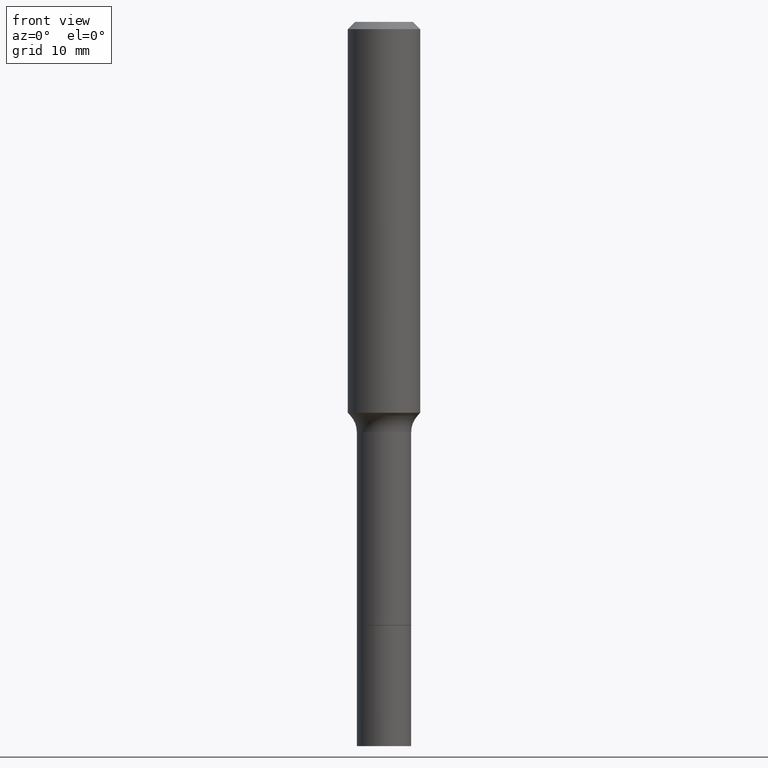
[diagram: clean part render]
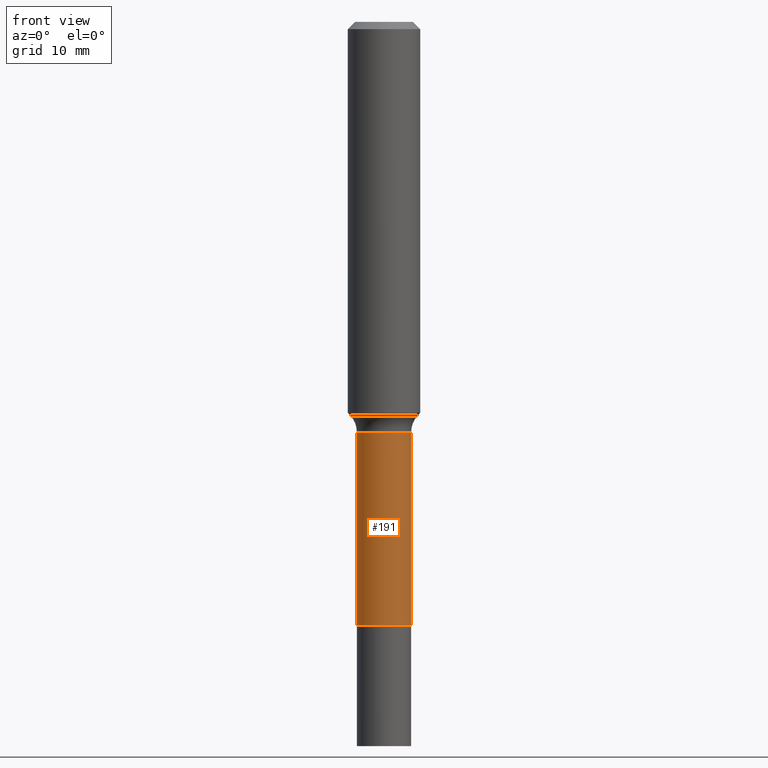
[diagram: same view with one face highlighted and labeled with its STEP entity id]
A machine part, front view. The second image highlights one B-rep face of the part: STEP entity #191.
In plain terms, the highlighted cylindrical surface (edge-blend (fillet) strip) has radius 2.2504 mm, axis along (-0, 0, 1).
Its self-contained STEP definition (entity closure, byte-faithful):
#15 = CARTESIAN_POINT ( 'NONE',  ( 0.08859999999999994269, -6.186904932430028543E-16, 4.320292623355196663E-30 ) ) ;
#22 = DIRECTION ( 'NONE',  ( -2.445468806185136877E-29, 3.491481338843145188E-15, 1.000000000000000000 ) ) ;
#24 = ORIENTED_EDGE ( 'NONE', *, *, #35, .F. ) ;
#35 = EDGE_CURVE ( 'NONE', #245, #253, #180, .T. ) ;
#37 = AXIS2_PLACEMENT_3D ( 'NONE', #356, #160, #318 ) ;
#57 = DIRECTION ( 'NONE',  ( -2.445468806185136597E-29, 3.491481338843145583E-15, 1.000000000000000000 ) ) ;
#73 = DIRECTION ( 'NONE',  ( 1.000000000000000000, -6.982962677686266711E-15, 4.876176775795936353E-29 ) ) ;
#93 = ORIENTED_EDGE ( 'NONE', *, *, #509, .T. ) ;
#104 = VECTOR ( 'NONE', #22, 39.37007874015748143 ) ;
#138 = VECTOR ( 'NONE', #271, 39.37007874015748143 ) ;
#148 = CARTESIAN_POINT ( 'NONE',  ( -0.08859999999999991493, -5.141703215157328173E-15, -1.338200000000000056 ) ) ;
#160 = DIRECTION ( 'NONE',  ( -2.445468806185136597E-29, 3.491481338843145583E-15, 1.000000000000000000 ) ) ;
#166 = VERTEX_POINT ( 'NONE', #434 ) ;
#180 = LINE ( 'NONE', #337, #104 ) ;
#191 = ADVANCED_FACE ( 'NONE', ( #390 ), #393, .T. ) ;
#207 = LINE ( 'NONE', #15, #138 ) ;
#218 = CIRCLE ( 'NONE', #37, 0.08859999999999991493 ) ;
#224 = CARTESIAN_POINT ( 'NONE',  ( 0.000000000000000000, 0.000000000000000000, 0.000000000000000000 ) ) ;
#244 = CIRCLE ( 'NONE', #450, 0.08859999999999999820 ) ;
#245 = VERTEX_POINT ( 'NONE', #431 ) ;
#251 = DIRECTION ( 'NONE',  ( 1.000000000000000000, -6.982962677686269077E-15, 0.000000000000000000 ) ) ;
#253 = VERTEX_POINT ( 'NONE', #148 ) ;
#255 = CARTESIAN_POINT ( 'NONE',  ( 4.811948969930493801E-29, -6.870187830441658090E-15, -1.967700000000000227 ) ) ;
#256 = ORIENTED_EDGE ( 'NONE', *, *, #380, .F. ) ;
#271 = DIRECTION ( 'NONE',  ( -2.445468806185136877E-29, 3.491481338843145188E-15, 1.000000000000000000 ) ) ;
#291 = EDGE_LOOP ( 'NONE', ( #24, #93, #492, #256 ) ) ;
#318 = DIRECTION ( 'NONE',  ( 1.000000000000000000, -6.982962677686264344E-15, 0.000000000000000000 ) ) ;
#337 = CARTESIAN_POINT ( 'NONE',  ( -0.08859999999999994269, 6.295408638834483575E-16, -4.358176489965843464E-30 ) ) ;
#352 = EDGE_CURVE ( 'NONE', #166, #454, #207, .T. ) ;
#356 = CARTESIAN_POINT ( 'NONE',  ( 3.272526356436949336E-29, -4.672300327639896745E-15, -1.338200000000000056 ) ) ;
#370 = CARTESIAN_POINT ( 'NONE',  ( 0.08859999999999991493, -5.290990820882899698E-15, -1.338200000000000056 ) ) ;
#380 = EDGE_CURVE ( 'NONE', #253, #454, #218, .T. ) ;
#388 = DIRECTION ( 'NONE',  ( -2.445468806185136597E-29, 3.491481338843145583E-15, 1.000000000000000000 ) ) ;
#390 = FACE_OUTER_BOUND ( 'NONE', #291, .T. ) ;
#393 = CYLINDRICAL_SURFACE ( 'NONE', #506, 0.08859999999999994269 ) ;
#431 = CARTESIAN_POINT ( 'NONE',  ( -0.08859999999999999820, -5.141703215157327384E-15, -1.967700000000000227 ) ) ;
#434 = CARTESIAN_POINT ( 'NONE',  ( 0.08859999999999999820, -7.488878323684661832E-15, -1.967700000000000227 ) ) ;
#450 = AXIS2_PLACEMENT_3D ( 'NONE', #255, #57, #251 ) ;
#454 = VERTEX_POINT ( 'NONE', #370 ) ;
#492 = ORIENTED_EDGE ( 'NONE', *, *, #352, .T. ) ;
#506 = AXIS2_PLACEMENT_3D ( 'NONE', #224, #388, #73 ) ;
#509 = EDGE_CURVE ( 'NONE', #245, #166, #244, .T. ) ;